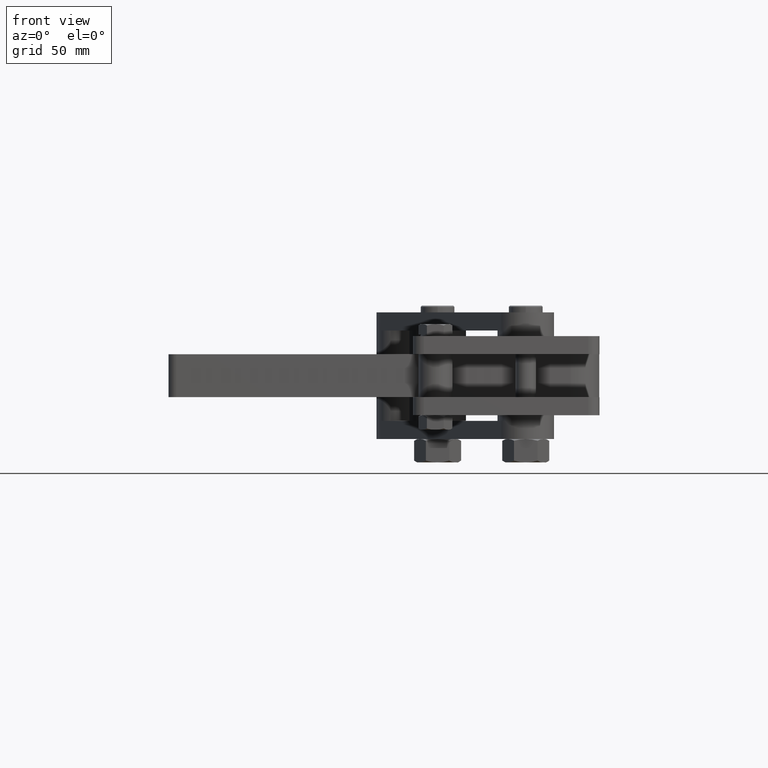
[diagram: clean part render]
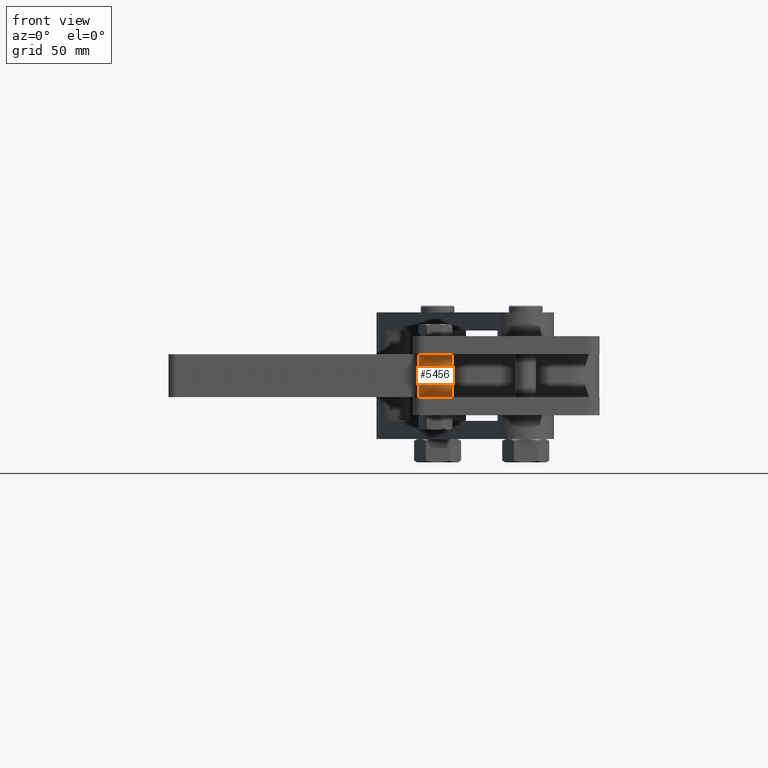
[diagram: same view with one face highlighted and labeled with its STEP entity id]
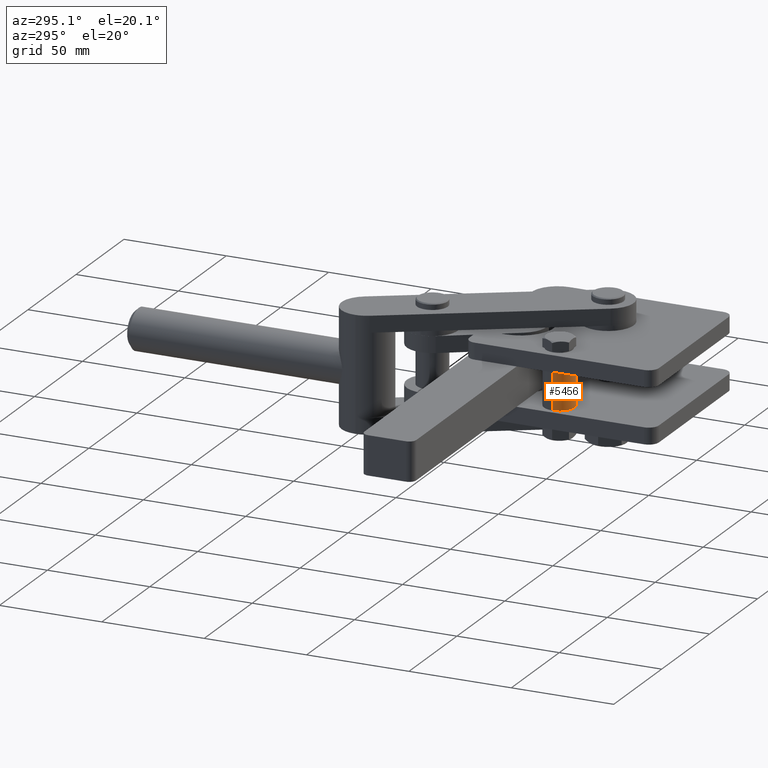
[diagram: same view with one face highlighted and labeled with its STEP entity id]
A machine part, front view. The second image highlights one B-rep face of the part: STEP entity #5456.
A second angle (auxiliary view) of the same face is appended — the face is thin or edge-on in the first view.
In plain terms, the highlighted cylindrical surface (edge-blend (fillet) strip) has radius 7.5 mm, axis along (0, 0, 1).
Its self-contained STEP definition (entity closure, byte-faithful):
#201 = VECTOR ( 'NONE', #2083, 1000.000000000000000 ) ;
#291 = AXIS2_PLACEMENT_3D ( 'NONE', #6459, #3011, #7032 ) ;
#397 = CARTESIAN_POINT ( 'NONE',  ( 12.50000000000000400, 46.00000000000000000, -45.87005768508874600 ) ) ;
#1268 = VERTEX_POINT ( 'NONE', #4879 ) ;
#1434 = CYLINDRICAL_SURFACE ( 'NONE', #3824, 7.500000000000000000 ) ;
#1503 = CARTESIAN_POINT ( 'NONE',  ( -2.499999999999994200, 46.00000000000000000, -45.87005768508874600 ) ) ;
#1535 = CIRCLE ( 'NONE', #4147, 7.500000000000000000 ) ;
#1616 = FACE_OUTER_BOUND ( 'NONE', #5848, .T. ) ;
#2083 = DIRECTION ( 'NONE',  ( -0.0000000000000000000, -0.0000000000000000000, 1.000000000000000000 ) ) ;
#2315 = LINE ( 'NONE', #397, #6903 ) ;
#2333 = ORIENTED_EDGE ( 'NONE', *, *, #3061, .F. ) ;
#2913 = EDGE_CURVE ( 'NONE', #6059, #1268, #3091, .T. ) ;
#2917 = CARTESIAN_POINT ( 'NONE',  ( 5.000000000000004400, 46.00000000000000000, 0.0000000000000000000 ) ) ;
#3011 = DIRECTION ( 'NONE',  ( -0.0000000000000000000, -0.0000000000000000000, 1.000000000000000000 ) ) ;
#3061 = EDGE_CURVE ( 'NONE', #1268, #5965, #1535, .T. ) ;
#3091 = LINE ( 'NONE', #1503, #201 ) ;
#3508 = DIRECTION ( 'NONE',  ( 1.000000000000000000, 0.0000000000000000000, 0.0000000000000000000 ) ) ;
#3527 = CARTESIAN_POINT ( 'NONE',  ( 12.50000000000000400, 46.00000000000000000, -19.00000000000000000 ) ) ;
#3536 = ORIENTED_EDGE ( 'NONE', *, *, #5697, .T. ) ;
#3540 = CIRCLE ( 'NONE', #291, 7.499999999999999100 ) ;
#3604 = CARTESIAN_POINT ( 'NONE',  ( 5.000000000000004400, 46.00000000000000000, -45.87005768508874600 ) ) ;
#3824 = AXIS2_PLACEMENT_3D ( 'NONE', #3604, #4769, #5329 ) ;
#4147 = AXIS2_PLACEMENT_3D ( 'NONE', #2917, #6942, #3508 ) ;
#4692 = CARTESIAN_POINT ( 'NONE',  ( -2.499999999999994200, 46.00000000000000000, -19.00000000000000000 ) ) ;
#4769 = DIRECTION ( 'NONE',  ( -0.0000000000000000000, -0.0000000000000000000, 1.000000000000000000 ) ) ;
#4879 = CARTESIAN_POINT ( 'NONE',  ( -2.499999999999994200, 46.00000000000000000, 0.0000000000000000000 ) ) ;
#5248 = ORIENTED_EDGE ( 'NONE', *, *, #7417, .T. ) ;
#5329 = DIRECTION ( 'NONE',  ( 1.000000000000000000, 0.0000000000000000000, 0.0000000000000000000 ) ) ;
#5456 = ADVANCED_FACE ( 'NONE', ( #1616 ), #1434, .T. ) ;
#5697 = EDGE_CURVE ( 'NONE', #6048, #5965, #2315, .T. ) ;
#5848 = EDGE_LOOP ( 'NONE', ( #5940, #5248, #3536, #2333 ) ) ;
#5940 = ORIENTED_EDGE ( 'NONE', *, *, #2913, .F. ) ;
#5965 = VERTEX_POINT ( 'NONE', #6322 ) ;
#6048 = VERTEX_POINT ( 'NONE', #3527 ) ;
#6059 = VERTEX_POINT ( 'NONE', #4692 ) ;
#6322 = CARTESIAN_POINT ( 'NONE',  ( 12.50000000000000400, 46.00000000000000000, 0.0000000000000000000 ) ) ;
#6459 = CARTESIAN_POINT ( 'NONE',  ( 5.000000000000004400, 46.00000000000000000, -19.00000000000000000 ) ) ;
#6710 = DIRECTION ( 'NONE',  ( -0.0000000000000000000, -0.0000000000000000000, 1.000000000000000000 ) ) ;
#6903 = VECTOR ( 'NONE', #6710, 1000.000000000000000 ) ;
#6942 = DIRECTION ( 'NONE',  ( 0.0000000000000000000, 0.0000000000000000000, 1.000000000000000000 ) ) ;
#7032 = DIRECTION ( 'NONE',  ( -1.000000000000000000, 0.0000000000000000000, 0.0000000000000000000 ) ) ;
#7417 = EDGE_CURVE ( 'NONE', #6059, #6048, #3540, .T. ) ;